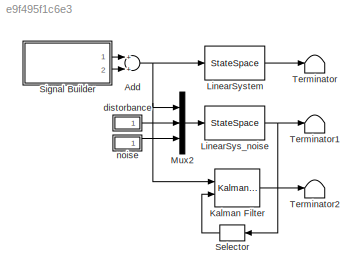
MODEL slx_e9f495f1c6e3
KIND model
CONFIG AbsTol = auto
CONFIG FixedStep = 0.01
CONFIG MaxStep = auto
CONFIG MinStep = auto
CONFIG RelTol = 1e-3
CONFIG SampleTimeConstraint = Unconstrained
CONFIG Solver = ode5
CONFIG SolverMode = Auto
CONFIG SolverName = ode5
CONFIG StartTime = 0.0
CONFIG StopTime = 10.0
BLOCK [Sum] Add
  InputSameDT = off
  OutDataTypeStr = Inherit: Inherit via internal rule
  Ports = [2, 1]
  SaturateOnIntegerOverflow = off
BLOCK [Reference] Kalman Filter  REF=ctrlSharedLib/Kalman Filter
  A = A
  AddEnablePort = off
  AddInputPort = on
  B = B
  C = C
  D = D
  ExternalReset = none
  G = 1
  H = 0
  InitialEstimateSource = Dialog
  ModelSource = Individual A, B, C, D matrices
  ModelSourceVariable = ss(A,B,C,D,Ts)
  N = 0
  NumberOfInputs = 1
  NumberOfOutputs = 1
  NumberOfProcessNoiseInputs = 1
  NumberOfStates = 1
  OutputEstimatedY = off
  OutputP = off
  P0 = 10
  Ports = [2, 1]
  Q = diag([1e-03 1e-03 0.1 0.1])
  R = 1e-04
  SourceBlock = ctrlSharedLib/Kalman Filter
  SourceType = ctrlKalmanFilter
  TimeDomain = Continuous-Time
  TimeInvariantG = on
  TimeInvariantH = on
  TimeInvariantN = on
  TimeInvariantQ = on
  TimeInvariantR = on
  Ts = -1
  UseCurrentEstimator = on
  UseGH = off
  UseK = off
  X0 = [0; 0; 0; 0]
BLOCK [StateSpace] LinearSys_noise
  A = A
  B = BF
  C = C
  D = DF
  Ports = [1, 1]
  X0 = [0; 0; 0; 0]
BLOCK [StateSpace] LinearSystem
  A = A
  B = B
  C = C
  D = D
  Ports = [1, 1]
  X0 = [0; 0; 0; 0]
BLOCK [Mux] Mux2
  DisplayOption = bar
  Inputs = 3
  Ports = [3, 1]
BLOCK [Selector] Selector
  Indices = [1]
  InputPortWidth = 4
  Ports = [1, 1]
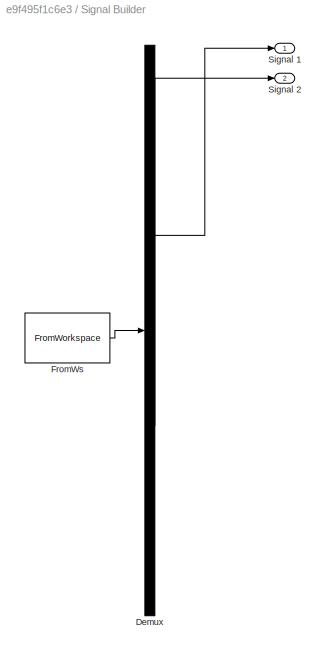
BLOCK [SubSystem] Signal Builder
  ClipboardFcn = sigbuilder_block('clipboard');
  CloseFcn = sigbuilder_block('close');
  ContinueFcn = sigbuilder_block('continue');
  CopyFcn = sigbuilder_block('copy');
  DeleteFcn = sigbuilder_block('delete');
  LoadFcn = sigbuilder_block('load');
  MaskHideContents = on
  ModelCloseFcn = sigbuilder_block('modelClose');
  NameChangeFcn = sigbuilder_block('namechange');
  OpenFcn = sigbuilder_block('open',[437.6 199.2 550.4 400 ]);
  PauseFcn = sigbuilder_block('pause');
  Ports = [0, 2]
  PreSaveFcn = sigbuilder_block('preSave');
  RequestExecContextInheritance = off
  StartFcn = sigbuilder_block('start');
  StopFcn = sigbuilder_block('stop');
  Tag = STV Subsys
BLOCK [Demux] Signal Builder/Demux
  Outputs = 2
  Ports = [1, 2]
  Tag = STV Demux
BLOCK [FromWorkspace] Signal Builder/FromWs
  SampleTime = 0
  Tag = STV FromWs
  VariableName = tuvar
  ZeroCross = on
BLOCK [Outport] Signal Builder/Signal 1
  IconDisplay = Port number
  Tag = STV Outport
BLOCK [Outport] Signal Builder/Signal 2
  IconDisplay = Port number
  Port = 2
  Tag = STV Outport
BLOCK [Terminator] Terminator
BLOCK [Terminator] Terminator1
BLOCK [Terminator] Terminator2
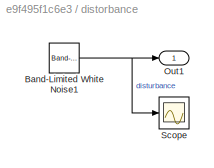
BLOCK [SubSystem] distorbance
  Ports = [0, 1]
  RequestExecContextInheritance = off
BLOCK [Reference] distorbance/Band-Limited White Noise1  REF=simulink/Sources/Band-Limited
White Noise
  Cov = [0 0 0.1*0.01 0.1*0.01]
  Ports = [0, 1]
  SourceBlock = simulink/Sources/Band-Limited\nWhite Noise
  SourceType = Band-Limited White Noise.
  Ts = 0.01
  VectorParams1D = on
  seed = [23341]
BLOCK [Outport] distorbance/Out1
  IconDisplay = Port number
BLOCK [Scope] distorbance/Scope
  Floating = off
  LimitDataPoints = off
  NumInputPorts = 1
  Ports = [1]
  SaveName = noise
  SaveToWorkspace = on
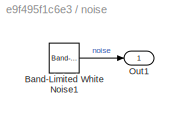
BLOCK [SubSystem] noise
  Ports = [0, 1]
  RequestExecContextInheritance = off
BLOCK [Reference] noise/Band-Limited White Noise1  REF=simulink/Sources/Band-Limited
White Noise
  Cov = [1e-4*0.01]
  Ports = [0, 1]
  SourceBlock = simulink/Sources/Band-Limited\nWhite Noise
  SourceType = Band-Limited White Noise.
  Ts = 0.01
  VectorParams1D = on
  seed = [23341]
BLOCK [Outport] noise/Out1
  IconDisplay = Port number
NET Add:1 -> Kalman Filter:1, LinearSystem:1, Mux2:1
LINE Kalman Filter:1 -> Terminator2:1
NET LinearSys_noise:1 -> Selector:1, Terminator1:1
LINE LinearSystem:1 -> Terminator:1
LINE Mux2:1 -> LinearSys_noise:1
LINE Selector:1 -> Kalman Filter:2
LINE Signal Builder:1 -> Add:1
LINE Signal Builder:2 -> Add:2
NET distorbance/Band-Limited White Noise1:1 -> distorbance/Out1:1, distorbance/Scope:1
LINE distorbance:1 -> Mux2:2
LINE noise/Band-Limited White Noise1:1 -> noise/Out1:1
LINE noise:1 -> Mux2:3
note: NET lines group one-source signal fan-out (src -> all destinations, sorted); 1:1 wires keep LINE
